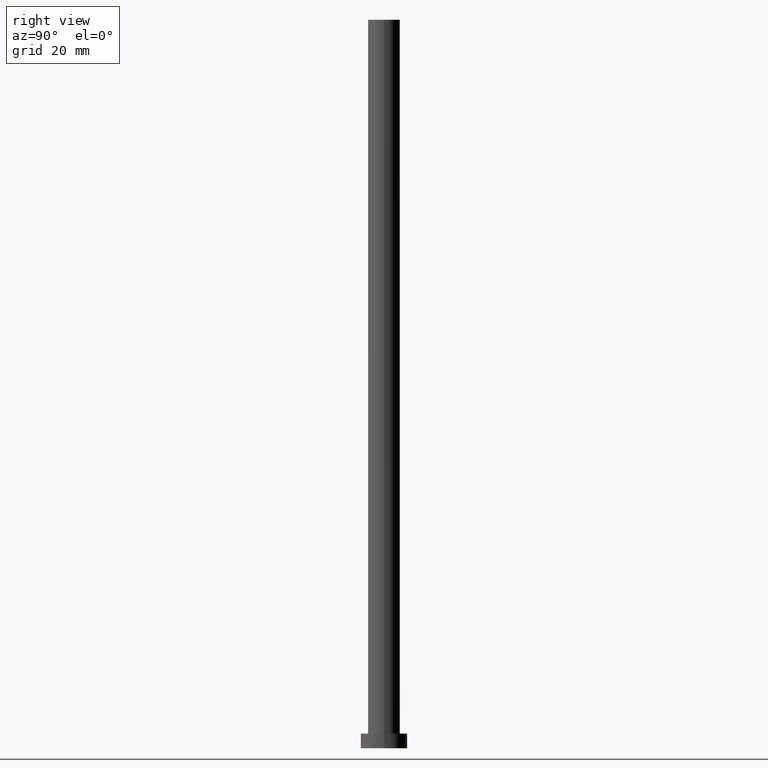
[diagram: clean part render]
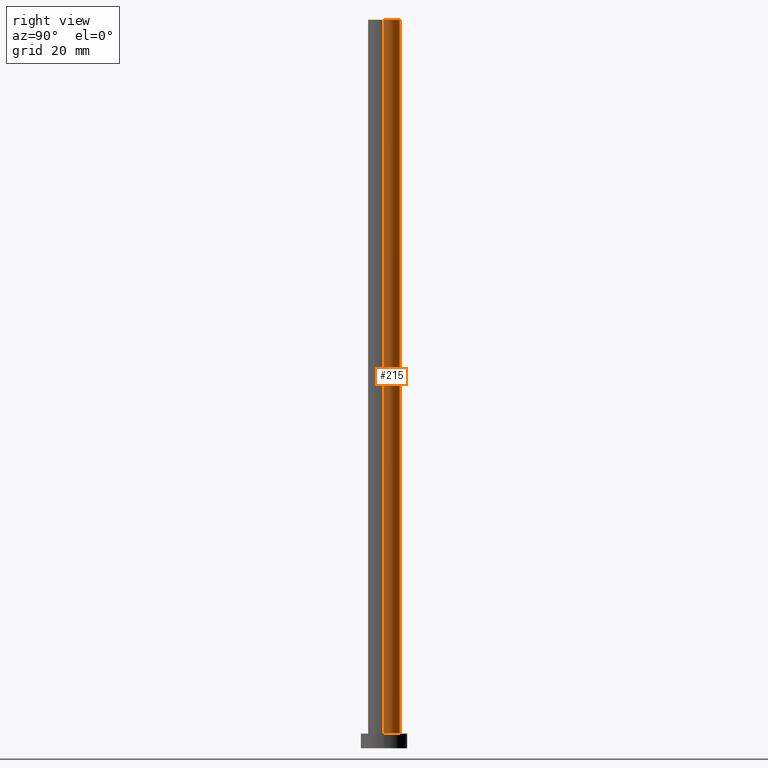
[diagram: same view with one face highlighted and labeled with its STEP entity id]
A machine part, right view. The second image highlights one B-rep face of the part: STEP entity #215.
In plain terms, the highlighted cylindrical surface (edge-blend (fillet) strip) has radius 5.5 mm, axis along (-0, -0, -1).
Its self-contained STEP definition (entity closure, byte-faithful):
#3 = DIRECTION ( 'NONE',  ( -1.000000000000000000, 0.000000000000000000, 0.000000000000000000 ) ) ;
#10 = VERTEX_POINT ( 'NONE', #59 ) ;
#12 = CARTESIAN_POINT ( 'NONE',  ( -5.500000000000000000, 0.000000000000000000, 250.0000000000000000 ) ) ;
#19 = DIRECTION ( 'NONE',  ( -0.000000000000000000, -0.000000000000000000, -1.000000000000000000 ) ) ;
#49 = ORIENTED_EDGE ( 'NONE', *, *, #138, .F. ) ;
#55 = EDGE_CURVE ( 'NONE', #141, #145, #147, .T. ) ;
#57 = CARTESIAN_POINT ( 'NONE',  ( 5.500000000000000000, 6.735557395310442023E-16, 250.0000000000000000 ) ) ;
#59 = CARTESIAN_POINT ( 'NONE',  ( -5.500000000000000000, 0.000000000000000000, 250.0000000000000000 ) ) ;
#62 = CARTESIAN_POINT ( 'NONE',  ( 0.000000000000000000, 0.000000000000000000, 250.0000000000000000 ) ) ;
#64 = DIRECTION ( 'NONE',  ( 0.000000000000000000, 0.000000000000000000, 1.000000000000000000 ) ) ;
#65 = CARTESIAN_POINT ( 'NONE',  ( 0.000000000000000000, 0.000000000000000000, 5.000000000000000000 ) ) ;
#76 = CARTESIAN_POINT ( 'NONE',  ( 5.500000000000000000, 6.735557395310442023E-16, 5.000000000000000000 ) ) ;
#77 = DIRECTION ( 'NONE',  ( -0.000000000000000000, -0.000000000000000000, -1.000000000000000000 ) ) ;
#83 = DIRECTION ( 'NONE',  ( 1.000000000000000000, 0.000000000000000000, 0.000000000000000000 ) ) ;
#85 = AXIS2_PLACEMENT_3D ( 'NONE', #233, #19, #3 ) ;
#88 = ORIENTED_EDGE ( 'NONE', *, *, #232, .T. ) ;
#105 = CIRCLE ( 'NONE', #224, 5.500000000000000000 ) ;
#111 = CARTESIAN_POINT ( 'NONE',  ( -5.500000000000000000, 0.000000000000000000, 5.000000000000000000 ) ) ;
#112 = AXIS2_PLACEMENT_3D ( 'NONE', #65, #64, #83 ) ;
#118 = CIRCLE ( 'NONE', #112, 5.500000000000000000 ) ;
#126 = LINE ( 'NONE', #12, #156 ) ;
#127 = VECTOR ( 'NONE', #210, 1000.000000000000000 ) ;
#131 = DIRECTION ( 'NONE',  ( 0.000000000000000000, 0.000000000000000000, 1.000000000000000000 ) ) ;
#134 = FACE_OUTER_BOUND ( 'NONE', #223, .T. ) ;
#138 = EDGE_CURVE ( 'NONE', #10, #242, #126, .T. ) ;
#141 = VERTEX_POINT ( 'NONE', #190 ) ;
#145 = VERTEX_POINT ( 'NONE', #76 ) ;
#147 = LINE ( 'NONE', #57, #127 ) ;
#156 = VECTOR ( 'NONE', #77, 1000.000000000000000 ) ;
#157 = CYLINDRICAL_SURFACE ( 'NONE', #85, 5.500000000000000000 ) ;
#161 = DIRECTION ( 'NONE',  ( 1.000000000000000000, 0.000000000000000000, 0.000000000000000000 ) ) ;
#190 = CARTESIAN_POINT ( 'NONE',  ( 5.500000000000000000, 6.735557395310442023E-16, 250.0000000000000000 ) ) ;
#204 = ORIENTED_EDGE ( 'NONE', *, *, #218, .F. ) ;
#210 = DIRECTION ( 'NONE',  ( -0.000000000000000000, -0.000000000000000000, -1.000000000000000000 ) ) ;
#215 = ADVANCED_FACE ( 'NONE', ( #134 ), #157, .T. ) ;
#218 = EDGE_CURVE ( 'NONE', #141, #10, #105, .T. ) ;
#221 = ORIENTED_EDGE ( 'NONE', *, *, #55, .T. ) ;
#223 = EDGE_LOOP ( 'NONE', ( #204, #221, #88, #49 ) ) ;
#224 = AXIS2_PLACEMENT_3D ( 'NONE', #62, #131, #161 ) ;
#232 = EDGE_CURVE ( 'NONE', #145, #242, #118, .T. ) ;
#233 = CARTESIAN_POINT ( 'NONE',  ( 0.000000000000000000, 0.000000000000000000, 250.0000000000000000 ) ) ;
#242 = VERTEX_POINT ( 'NONE', #111 ) ;